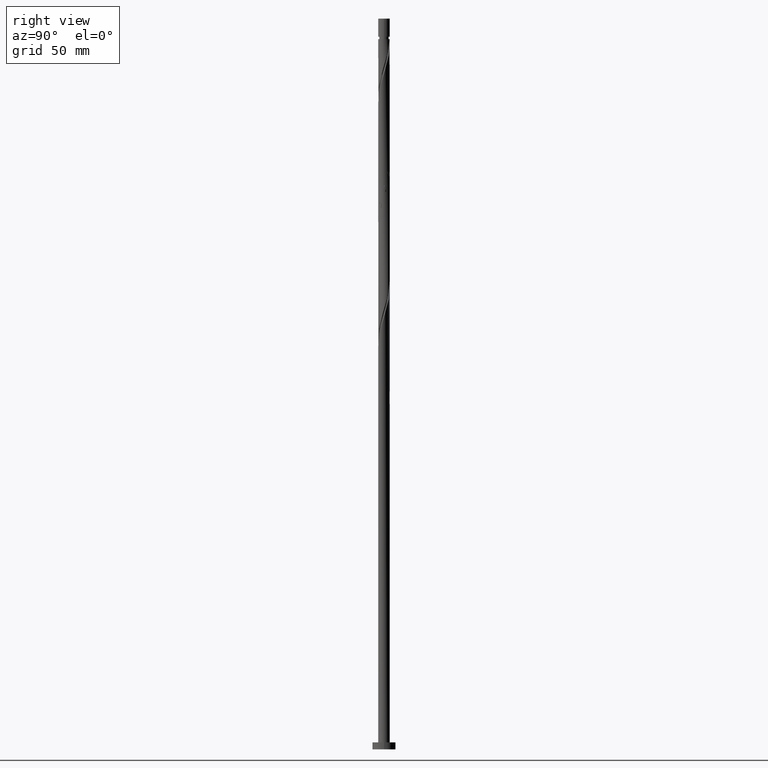
[diagram: clean part render]
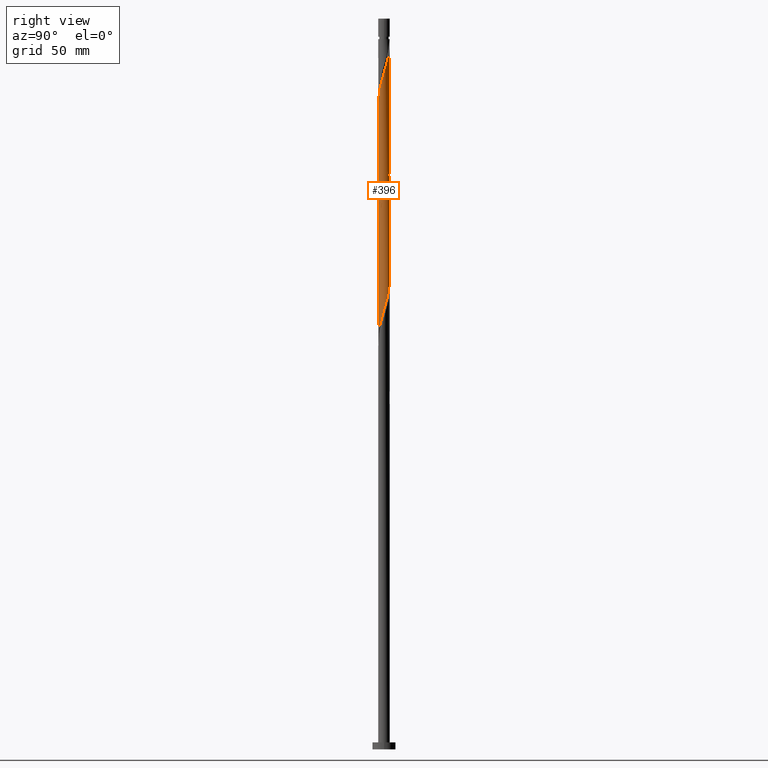
[diagram: same view with one face highlighted and labeled with its STEP entity id]
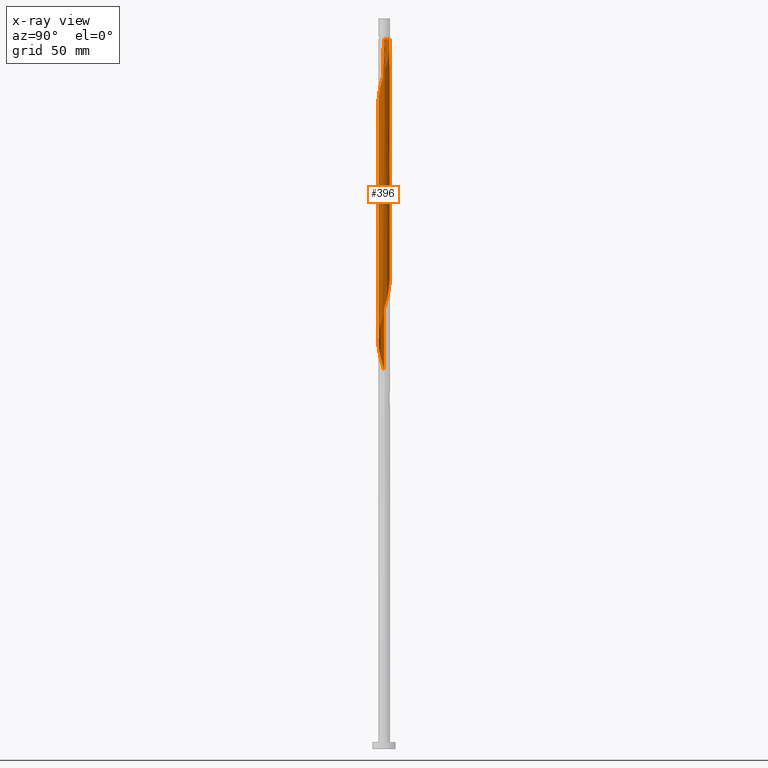
[diagram: x-ray of the same camera — body ghosted, the highlighted face saturated]
A machine part, right view. The second image highlights one B-rep face of the part: STEP entity #396.
The next image is the same camera in x-ray: the body ghosted, the highlighted face saturated — about 0% of this face is hidden behind the body in this view.
In plain terms, the highlighted cylindrical surface (bore or boss wall) has radius 2.5 mm, axis along (-0, -0, -1).
Its self-contained STEP definition (entity closure, byte-faithful):
#14 = CARTESIAN_POINT ( 'NONE',  ( -2.500000000000000000, 0.000000000000000000, 315.0000000000000000 ) ) ;
#27 = CARTESIAN_POINT ( 'NONE',  ( -2.161795315762409686, 1.286851179782861010, 211.5036807717714566 ) ) ;
#37 = CARTESIAN_POINT ( 'NONE',  ( 2.499999999999999112, -2.339614999499183426E-15, 242.2406978496775025 ) ) ;
#38 = CARTESIAN_POINT ( 'NONE',  ( 2.449999999999998401, -0.4974937185533123141, 240.5661807717713714 ) ) ;
#56 = CARTESIAN_POINT ( 'NONE',  ( -2.161795315762409686, 1.286851179782861010, 264.0036807717714282 ) ) ;
#66 = CARTESIAN_POINT ( 'NONE',  ( -0.3417565674784757701, 2.492498223619459718, 204.0036807717714566 ) ) ;
#68 = CARTESIAN_POINT ( 'NONE',  ( -1.511241513231559752, -1.991519291567516614, 171.1911807717714282 ) ) ;
#81 = FACE_OUTER_BOUND ( 'NONE', #1532, .T. ) ;
#89 = CARTESIAN_POINT ( 'NONE',  ( -2.097380685417673529, -1.389366476707181830, 168.3786807717713998 ) ) ;
#97 = CARTESIAN_POINT ( 'NONE',  ( -1.821243267372627983, -1.735631846680260049, 271.5036807717714851 ) ) ;
#98 = CARTESIAN_POINT ( 'NONE',  ( 2.097380685417673529, 1.389366476707181608, 194.6286807717714566 ) ) ;
#106 = CARTESIAN_POINT ( 'NONE',  ( -2.500000000000004441, -0.2512594538148014145, 265.9799347728289263 ) ) ;
#118 = CARTESIAN_POINT ( 'NONE',  ( 0.7735424213085847489, -2.393945920148762507, 280.8786807717714282 ) ) ;
#133 = CARTESIAN_POINT ( 'NONE',  ( 1.511241513231560862, -1.991519291567519945, 283.6911807717714851 ) ) ;
#162 = CARTESIAN_POINT ( 'NONE',  ( 2.499276151735349671, 0.06015577584021734869, 242.4411807717714282 ) ) ;
#163 = CARTESIAN_POINT ( 'NONE',  ( 2.499999999999999112, -2.339614999499183426E-15, 242.2406978496775025 ) ) ;
#166 = ORIENTED_EDGE ( 'NONE', *, *, #330, .F. ) ;
#175 = CARTESIAN_POINT ( 'NONE',  ( -1.286851179782861010, -2.161795315762409686, 224.6286807717714282 ) ) ;
#186 = DIRECTION ( 'NONE',  ( -0.000000000000000000, -0.000000000000000000, -1.000000000000000000 ) ) ;
#192 = CARTESIAN_POINT ( 'NONE',  ( 0.7735424213085846379, 2.393945920148758510, 252.7536807717713998 ) ) ;
#193 = CARTESIAN_POINT ( 'NONE',  ( -2.393945920148758510, 0.7735424213085841938, 213.3786807717714282 ) ) ;
#205 = CARTESIAN_POINT ( 'NONE',  ( -0.8878210494104737949, 2.353958098689209688, 205.8786807717713998 ) ) ;
#208 = CARTESIAN_POINT ( 'NONE',  ( 1.916506266048965568, 1.605304872039902131, 195.5661807717713714 ) ) ;
#215 = CARTESIAN_POINT ( 'NONE',  ( 2.225669392053440721, 1.138593763058826758, 193.6911807717713998 ) ) ;
#218 = CARTESIAN_POINT ( 'NONE',  ( 0.000000000000000000, 0.000000000000000000, 315.0000000000000000 ) ) ;
#226 = CARTESIAN_POINT ( 'NONE',  ( -2.423228161154335147, -0.6147888084444743662, 165.5661807717714282 ) ) ;
#236 = CARTESIAN_POINT ( 'NONE',  ( -1.991519291567519945, -1.511241513231561306, 270.5661807717713145 ) ) ;
#249 = DIRECTION ( 'NONE',  ( -1.000000000000000000, 0.000000000000000000, 0.000000000000000000 ) ) ;
#251 = CARTESIAN_POINT ( 'NONE',  ( -2.277870617955586763, -1.030196800545723379, 268.6911807717713145 ) ) ;
#252 = CARTESIAN_POINT ( 'NONE',  ( 1.605304872039906572, 1.916506266048967344, 298.6911807717714851 ) ) ;
#263 = CARTESIAN_POINT ( 'NONE',  ( 1.916506266048967344, -1.605304872039906572, 285.5661807717713714 ) ) ;
#271 = CARTESIAN_POINT ( 'NONE',  ( -1.389366476707184717, -2.097380685417676638, 273.3786807717715419 ) ) ;
#276 = CARTESIAN_POINT ( 'NONE',  ( -2.499999999999999112, 1.656760860889373586E-15, 268.4906978496774741 ) ) ;
#305 = CARTESIAN_POINT ( 'NONE',  ( -2.506054079851239624, 0.2214450157980402123, 215.2536807717714566 ) ) ;
#314 = CARTESIAN_POINT ( 'NONE',  ( 2.499999999999999112, -2.339614999499183426E-15, 242.2406978496775025 ) ) ;
#325 = CARTESIAN_POINT ( 'NONE',  ( -1.389366476707182274, 2.097380685417673529, 260.2536807717714282 ) ) ;
#326 = CARTESIAN_POINT ( 'NONE',  ( 0.8878210494104735728, -2.353958098689209688, 232.1286807717714282 ) ) ;
#330 = EDGE_CURVE ( 'NONE', #1281, #539, #861, .T. ) ;
#335 = CARTESIAN_POINT ( 'NONE',  ( 1.030196800545722713, 2.277870617955583210, 251.8161807717714282 ) ) ;
#336 = CARTESIAN_POINT ( 'NONE',  ( -2.499276151735349671, -0.06015577584021766788, 216.1911807717713998 ) ) ;
#338 = CARTESIAN_POINT ( 'NONE',  ( 2.500000000000000000, 3.061616997868383141E-16, 315.0000000000000000 ) ) ;
#340 = CARTESIAN_POINT ( 'NONE',  ( 1.389366476707181830, -2.097380685417673529, 181.5036807717714566 ) ) ;
#346 = CARTESIAN_POINT ( 'NONE',  ( 2.225669392053440721, 1.138593763058826758, 246.1911807717713714 ) ) ;
#347 = CARTESIAN_POINT ( 'NONE',  ( -1.991519291567516614, 1.511241513231559308, 210.5661807717713714 ) ) ;
#361 = CARTESIAN_POINT ( 'NONE',  ( 0.06015577584021745972, -2.499276151735349671, 176.8161807717714282 ) ) ;
#373 = CARTESIAN_POINT ( 'NONE',  ( -0.4974937185533871431, 2.450000000000752909, 306.1911807717714282 ) ) ;
#381 = CARTESIAN_POINT ( 'NONE',  ( -2.499999999999999112, 2.033636642307902766E-15, 163.4906978496774173 ) ) ;
#391 = CARTESIAN_POINT ( 'NONE',  ( 1.821243267372627983, 1.735631846680260049, 297.7536807717713714 ) ) ;
#396 = ADVANCED_FACE ( 'NONE', ( #81 ), #1469, .T. ) ;
#401 = CARTESIAN_POINT ( 'NONE',  ( 2.161795315762413239, 1.286851179782861898, 295.8786807717713714 ) ) ;
#403 = ORIENTED_EDGE ( 'NONE', *, *, #526, .F. ) ;
#411 = CARTESIAN_POINT ( 'NONE',  ( 2.423228161154338700, -0.6147888084444764756, 289.3161807717714851 ) ) ;
#420 = CARTESIAN_POINT ( 'NONE',  ( -2.161795315762413239, -1.286851179782862342, 269.6286807717713714 ) ) ;
#421 = CARTESIAN_POINT ( 'NONE',  ( 2.277870617955587207, 1.030196800545723157, 294.9411807717713714 ) ) ;
#424 = ORIENTED_EDGE ( 'NONE', *, *, #1568, .F. ) ;
#439 = CARTESIAN_POINT ( 'NONE',  ( 2.500000000000000000, 3.061616997868383141E-16, 306.1911807717714282 ) ) ;
#455 = CARTESIAN_POINT ( 'NONE',  ( 0.4974937185533126471, 2.449999999999998401, 253.6911807717713430 ) ) ;
#456 = CARTESIAN_POINT ( 'NONE',  ( 1.605304872039902131, -1.916506266048965568, 234.9411807717713430 ) ) ;
#468 = CARTESIAN_POINT ( 'NONE',  ( -1.389366476707182274, 2.097380685417673529, 207.7536807717713998 ) ) ;
#471 = EDGE_CURVE ( 'NONE', #1252, #1557, #1028, .T. ) ;
#479 = CARTESIAN_POINT ( 'NONE',  ( -2.225669392053440721, -1.138593763058827424, 219.9411807717713430 ) ) ;
#485 = CARTESIAN_POINT ( 'NONE',  ( -2.393945920148758510, 0.7735424213085841938, 265.8786807717714851 ) ) ;
#486 = CARTESIAN_POINT ( 'NONE',  ( -1.138593763058827424, 2.225669392053440721, 206.8161807717713714 ) ) ;
#496 = CARTESIAN_POINT ( 'NONE',  ( 2.500000000000000444, -0.2512594538148020251, 241.4024267707139586 ) ) ;
#504 = CARTESIAN_POINT ( 'NONE',  ( -2.500000000000000000, 0.000000000000000000, 315.0000000000000000 ) ) ;
#507 = CARTESIAN_POINT ( 'NONE',  ( -0.7735424213085843048, -2.393945920148758510, 174.0036807717713998 ) ) ;
#516 = CARTESIAN_POINT ( 'NONE',  ( 2.393945920148758510, -0.7735424213085844158, 187.1286807717714282 ) ) ;
#526 = EDGE_CURVE ( 'NONE', #1106, #1557, #1236, .T. ) ;
#533 = DIRECTION ( 'NONE',  ( -0.000000000000000000, -0.000000000000000000, -1.000000000000000000 ) ) ;
#539 = VERTEX_POINT ( 'NONE', #601 ) ;
#545 = CARTESIAN_POINT ( 'NONE',  ( 1.735631846680260049, -1.821243267372627983, 284.6286807717715988 ) ) ;
#553 = CARTESIAN_POINT ( 'NONE',  ( -2.500000000000004441, -1.037341259746041989E-15, 265.1416636938653824 ) ) ;
#554 = CARTESIAN_POINT ( 'NONE',  ( 1.138593763058830532, 2.225669392053443829, 300.5661807717714282 ) ) ;
#561 = CARTESIAN_POINT ( 'NONE',  ( 2.450000000000002842, 0.4974937185533119255, 293.0661807717714851 ) ) ;
#589 = CARTESIAN_POINT ( 'NONE',  ( 2.499999999999999112, 0.03008224291597728917, 242.3410605379026208 ) ) ;
#601 = CARTESIAN_POINT ( 'NONE',  ( -0.4974937185533871431, 2.450000000000752909, 306.1911807717714282 ) ) ;
#602 = CARTESIAN_POINT ( 'NONE',  ( 1.821243267372624208, -1.735631846680257384, 235.8786807717713714 ) ) ;
#613 = CARTESIAN_POINT ( 'NONE',  ( -1.030196800545722269, -2.277870617955584098, 225.5661807717713714 ) ) ;
#625 = CARTESIAN_POINT ( 'NONE',  ( 1.389366476707181830, -2.097380685417673529, 234.0036807717714566 ) ) ;
#629 = CARTESIAN_POINT ( 'NONE',  ( -2.225669392053440721, -1.138593763058827424, 167.4411807717713998 ) ) ;
#634 = CARTESIAN_POINT ( 'NONE',  ( -2.499999999999999112, 1.656760860889373586E-15, 268.4906978496774741 ) ) ;
#635 = CARTESIAN_POINT ( 'NONE',  ( 0.2214450157980401013, 2.506054079851239624, 202.1286807717714282 ) ) ;
#637 = CARTESIAN_POINT ( 'NONE',  ( 2.423228161154335591, 0.6147888084444741441, 191.8161807717713714 ) ) ;
#645 = CARTESIAN_POINT ( 'NONE',  ( 2.499276151735349671, 0.06015577584021734869, 189.9411807717714282 ) ) ;
#647 = DIRECTION ( 'NONE',  ( -0.000000000000000000, -0.000000000000000000, -1.000000000000000000 ) ) ;
#654 = CARTESIAN_POINT ( 'NONE',  ( 1.991519291567516614, -1.511241513231559752, 184.3161807717713714 ) ) ;
#669 = CARTESIAN_POINT ( 'NONE',  ( 2.492498223619464159, -0.3417565674784771579, 290.2536807717714851 ) ) ;
#704 = AXIS2_PLACEMENT_3D ( 'NONE', #785, #533, #249 ) ;
#722 = CARTESIAN_POINT ( 'NONE',  ( -0.8878210494104737949, 2.353958098689209688, 258.3786807717713714 ) ) ;
#723 = CARTESIAN_POINT ( 'NONE',  ( -2.423228161154335147, -0.6147888084444743662, 218.0661807717713714 ) ) ;
#734 = CARTESIAN_POINT ( 'NONE',  ( -2.449999999999998401, 0.4974937185533121475, 266.8161807717713145 ) ) ;
#735 = CARTESIAN_POINT ( 'NONE',  ( -2.353958098689209688, -0.8878210494104735728, 219.0036807717714282 ) ) ;
#755 = CARTESIAN_POINT ( 'NONE',  ( -1.821243267372624430, 1.735631846680257384, 262.1286807717713714 ) ) ;
#756 = CARTESIAN_POINT ( 'NONE',  ( -2.277870617955584098, 1.030196800545722269, 212.4411807717713998 ) ) ;
#759 = VECTOR ( 'NONE', #186, 1000.000000000000000 ) ;
#770 = CARTESIAN_POINT ( 'NONE',  ( 1.605304872039902131, -1.916506266048965568, 182.4411807717713998 ) ) ;
#785 = CARTESIAN_POINT ( 'NONE',  ( 0.000000000000000000, 0.000000000000000000, 306.1911807717714282 ) ) ;
#820 = CARTESIAN_POINT ( 'NONE',  ( -0.8878210494104759043, -2.353958098689213685, 275.2536807717714851 ) ) ;
#840 = EDGE_CURVE ( 'NONE', #1777, #539, #1308, .T. ) ;
#844 = CARTESIAN_POINT ( 'NONE',  ( -2.499999999999974243, 0.000000000000000000, 306.1911807717714282 ) ) ;
#859 = CARTESIAN_POINT ( 'NONE',  ( -1.605304872039902353, 1.916506266048965346, 261.1911807717713714 ) ) ;
#860 = CARTESIAN_POINT ( 'NONE',  ( 0.7735424213085846379, 2.393945920148758510, 200.2536807717714282 ) ) ;
#861 =( BOUNDED_CURVE ( )  B_SPLINE_CURVE ( 2, ( #553, #106, #1096, #1661, #251, #420, #236, #97, #1357, #271, #1367, #820, #1786, #1384, #1210, #1516, #1766, #118, #1497, #1507, #133, #545, #263, #1662, #1239, #1645, #411, #669, #1248, #1217, #561, #1795, #421, #401, #947, #391, #252, #1376, #554, #1097, #1802, #1058, #1049, #1618, #373 ),
 .UNSPECIFIED., .F., .F. ) 
 B_SPLINE_CURVE_WITH_KNOTS ( ( 3, 2, 2, 2, 2, 2, 2, 2, 2, 2, 2, 2, 2, 2, 2, 2, 2, 2, 2, 2, 2, 2, 3 ),
 ( 0.5545303401299219725, 0.5625000000000000000, 0.5714285714285713969, 0.5803571428571427937, 0.5892857142857141906, 0.5982142857142855874, 0.6071428571428570953, 0.6160714285714284921, 0.6249999999999998890, 0.6339285714285712858, 0.6428571428571426827, 0.6517857142857141906, 0.6607142857142854764, 0.6696428571428569843, 0.6785714285714283811, 0.6874999999999997780, 0.6964285714285711748, 0.7053571428571425717, 0.7142857142857139685, 0.7232142857142853654, 0.7321428571428568732, 0.7410714285714282701, 0.7499999999999996669 ),
 .UNSPECIFIED. ) 
 CURVE ( )  GEOMETRIC_REPRESENTATION_ITEM ( )  RATIONAL_B_SPLINE_CURVE ( ( 0.9079949616362266163, 0.9039886423360893319, 0.9090909090909563561, 0.9033747362666310066, 0.9090909090909563561, 0.9033747362666310066, 0.9090909090909563561, 0.9033747362666310066, 0.9090909090909563561, 0.9033747362666310066, 0.9090909090909563561, 0.9033747362666310066, 0.9090909090909563561, 0.9033747362666310066, 0.9090909090909563561, 0.9033747362666310066, 0.9090909090909563561, 0.9033747362666310066, 0.9090909090909563561, 0.9033747362666310066, 0.9090909090909563561, 0.9033747362666310066, 0.9090909090909563561, 0.9033747362666310066, 0.9090909090909563561, 0.9033747362666310066, 0.9090909090909563561, 0.9033747362666310066, 0.9090909090909563561, 0.9033747362666310066, 0.9090909090909563561, 0.9033747362666310066, 0.9090909090909563561, 0.9033747362666310066, 0.9090909090909563561, 0.9033747362666310066, 0.9090909090909563561, 0.9033747362666310066, 0.9090909090909563561, 0.9033747362666310066, 0.9090909090909563561, 0.9033747362666310066, 0.9090909090909563561, 0.9033747362666311176, 0.9090909090909562451 ) ) 
 REPRESENTATION_ITEM ( '' )  );
#862 = EDGE_CURVE ( 'NONE', #1281, #1410, #1228, .T. ) ;
#884 = CARTESIAN_POINT ( 'NONE',  ( -1.991519291567516614, 1.511241513231559308, 263.0661807717714282 ) ) ;
#885 = CARTESIAN_POINT ( 'NONE',  ( 1.138593763058826758, -2.225669392053440721, 233.0661807717713998 ) ) ;
#892 = CARTESIAN_POINT ( 'NONE',  ( 1.511241513231559752, 1.991519291567516614, 249.9411807717713998 ) ) ;
#895 = CARTESIAN_POINT ( 'NONE',  ( -1.286851179782861010, -2.161795315762409686, 172.1286807717714282 ) ) ;
#900 = CARTESIAN_POINT ( 'NONE',  ( 2.353958098689209688, 0.8878210494104733508, 245.2536807717713998 ) ) ;
#901 = CARTESIAN_POINT ( 'NONE',  ( -0.6147888084444745882, 2.423228161154335147, 204.9411807717713714 ) ) ;
#904 = CARTESIAN_POINT ( 'NONE',  ( 1.138593763058826758, -2.225669392053440721, 180.5661807717714282 ) ) ;
#947 = CARTESIAN_POINT ( 'NONE',  ( 1.991519291567520389, 1.511241513231561084, 296.8161807717713714 ) ) ;
#970 = ORIENTED_EDGE ( 'NONE', *, *, #862, .T. ) ;
#976 = DIRECTION ( 'NONE',  ( -0.000000000000000000, -0.000000000000000000, -1.000000000000000000 ) ) ;
#980 = ORIENTED_EDGE ( 'NONE', *, *, #471, .T. ) ;
#996 = ORIENTED_EDGE ( 'NONE', *, *, #1054, .F. ) ;
#1004 = CARTESIAN_POINT ( 'NONE',  ( -1.605304872039902353, 1.916506266048965346, 208.6911807717713714 ) ) ;
#1025 = CARTESIAN_POINT ( 'NONE',  ( 0.2214450157980401013, 2.506054079851239624, 254.6286807717714282 ) ) ;
#1026 = CARTESIAN_POINT ( 'NONE',  ( -2.492498223619459718, -0.3417565674784753815, 217.1286807717714566 ) ) ;
#1028 = LINE ( 'NONE', #338, #759 ) ;
#1029 = CARTESIAN_POINT ( 'NONE',  ( -0.4974937185533122586, -2.449999999999998401, 174.9411807717713714 ) ) ;
#1035 = CARTESIAN_POINT ( 'NONE',  ( -2.277870617955584098, 1.030196800545722269, 264.9411807717713714 ) ) ;
#1039 = CARTESIAN_POINT ( 'NONE',  ( 2.506054079851239624, -0.2214450157980405176, 189.0036807717713714 ) ) ;
#1045 = CARTESIAN_POINT ( 'NONE',  ( -0.4974937185533122586, -2.449999999999998401, 227.4411807717713714 ) ) ;
#1046 = CARTESIAN_POINT ( 'NONE',  ( 0.3417565674784753260, -2.492498223619459718, 177.7536807717714282 ) ) ;
#1049 = CARTESIAN_POINT ( 'NONE',  ( 0.06015577584021897933, 2.499276151735353668, 304.3161807717713714 ) ) ;
#1054 = EDGE_CURVE ( 'NONE', #1777, #1106, #1235, .T. ) ;
#1056 = CARTESIAN_POINT ( 'NONE',  ( -1.030196800545722269, -2.277870617955584098, 173.0661807717714566 ) ) ;
#1058 = CARTESIAN_POINT ( 'NONE',  ( 0.3417565674784771579, 2.492498223619464159, 303.3786807717714851 ) ) ;
#1096 = CARTESIAN_POINT ( 'NONE',  ( -2.450000000000002842, -0.4974937185533122586, 266.8161807717714282 ) ) ;
#1097 = CARTESIAN_POINT ( 'NONE',  ( 0.8878210494104763484, 2.353958098689213685, 301.5036807717715419 ) ) ;
#1106 = VERTEX_POINT ( 'NONE', #276 ) ;
#1124 = VECTOR ( 'NONE', #1631, 1000.000000000000000 ) ;
#1135 = CARTESIAN_POINT ( 'NONE',  ( -1.138593763058827424, 2.225669392053440721, 259.3161807717713714 ) ) ;
#1136 = CARTESIAN_POINT ( 'NONE',  ( 1.030196800545722713, 2.277870617955583210, 199.3161807717713998 ) ) ;
#1156 = CARTESIAN_POINT ( 'NONE',  ( -2.097380685417673529, -1.389366476707181830, 220.8786807717714566 ) ) ;
#1168 = CARTESIAN_POINT ( 'NONE',  ( -2.499999999999999556, 0.2512594538148067436, 267.6524267707138165 ) ) ;
#1169 = CARTESIAN_POINT ( 'NONE',  ( -0.2214450157980403788, -2.506054079851239624, 228.3786807717714282 ) ) ;
#1179 = CARTESIAN_POINT ( 'NONE',  ( 0.6147888084444741441, -2.423228161154335147, 231.1911807717713998 ) ) ;
#1181 = CARTESIAN_POINT ( 'NONE',  ( 2.277870617955584098, -1.030196800545722491, 186.1911807717713998 ) ) ;
#1202 = CARTESIAN_POINT ( 'NONE',  ( 2.449999999999998401, -0.4974937185533123141, 188.0661807717714282 ) ) ;
#1210 = CARTESIAN_POINT ( 'NONE',  ( -0.06015577584021847279, -2.499276151735354112, 278.0661807717713714 ) ) ;
#1217 = CARTESIAN_POINT ( 'NONE',  ( 2.506054079851243621, 0.2214450157980396017, 292.1286807717714851 ) ) ;
#1228 = LINE ( 'NONE', #504, #1124 ) ;
#1235 = LINE ( 'NONE', #14, #1778 ) ;
#1236 =( BOUNDED_CURVE ( )  B_SPLINE_CURVE ( 2, ( #634, #1168, #734, #485, #1035, #56, #884, #755, #859, #325, #1135, #722, #1287, #1700, #1583, #1025, #455, #192, #335, #1309, #892, #1591, #1564, #1275, #346, #900, #1738, #1415, #162, #589, #37 ),
 .UNSPECIFIED., .F., .F. ) 
 B_SPLINE_CURVE_WITH_KNOTS ( ( 3, 2, 2, 2, 2, 2, 2, 2, 2, 2, 2, 2, 2, 2, 2, 3 ),
 ( 0.4295303401299220836, 0.4375000000000000000, 0.4464285714285714524, 0.4553571428571428492, 0.4642857142857143016, 0.4732142857142856984, 0.4821428571428571508, 0.4910714285714285476, 0.5000000000000000000, 0.5089285714285713969, 0.5178571428571429047, 0.5267857142857143016, 0.5357142857142856984, 0.5446428571428570953, 0.5535714285714286031, 0.5545303401299219725 ),
 .UNSPECIFIED. ) 
 CURVE ( )  GEOMETRIC_REPRESENTATION_ITEM ( )  RATIONAL_B_SPLINE_CURVE ( ( 0.9079949616362198439, 0.9039886423360827816, 0.9090909090909496948, 0.9033747362666244562, 0.9090909090909496948, 0.9033747362666244562, 0.9090909090909496948, 0.9033747362666244562, 0.9090909090909496948, 0.9033747362666244562, 0.9090909090909496948, 0.9033747362666244562, 0.9090909090909496948, 0.9033747362666244562, 0.9090909090909496948, 0.9033747362666244562, 0.9090909090909496948, 0.9033747362666244562, 0.9090909090909496948, 0.9033747362666244562, 0.9090909090909496948, 0.9033747362666244562, 0.9090909090909496948, 0.9033747362666244562, 0.9090909090909496948, 0.9033747362666244562, 0.9090909090909496948, 0.9033747362666244562, 0.9090909090909496948, 0.9084770030214914804, 0.9079949616362198439 ) ) 
 REPRESENTATION_ITEM ( '' )  );
#1239 = CARTESIAN_POINT ( 'NONE',  ( 2.225669392053443829, -1.138593763058830532, 287.4411807717713145 ) ) ;
#1248 = CARTESIAN_POINT ( 'NONE',  ( 2.499276151735354112, -0.06015577584021870178, 291.1911807717714282 ) ) ;
#1252 = VERTEX_POINT ( 'NONE', #439 ) ;
#1269 = ORIENTED_EDGE ( 'NONE', *, *, #471, .F. ) ;
#1275 = CARTESIAN_POINT ( 'NONE',  ( 2.097380685417673529, 1.389366476707181608, 247.1286807717714566 ) ) ;
#1276 = CARTESIAN_POINT ( 'NONE',  ( -0.7735424213085843048, -2.393945920148758510, 226.5036807717714851 ) ) ;
#1281 = VERTEX_POINT ( 'NONE', #1523 ) ;
#1287 = CARTESIAN_POINT ( 'NONE',  ( -0.6147888084444745882, 2.423228161154335147, 257.4411807717713714 ) ) ;
#1288 = CARTESIAN_POINT ( 'NONE',  ( 2.393945920148758510, -0.7735424213085844158, 239.6286807717714282 ) ) ;
#1299 = CARTESIAN_POINT ( 'NONE',  ( 1.991519291567516614, -1.511241513231559752, 236.8161807717713714 ) ) ;
#1308 = CIRCLE ( 'NONE', #704, 2.499999999999974243 ) ;
#1309 = CARTESIAN_POINT ( 'NONE',  ( 1.286851179782861232, 2.161795315762409242, 250.8786807717714566 ) ) ;
#1310 = CARTESIAN_POINT ( 'NONE',  ( -2.449999999999998401, 0.4974937185533121475, 214.3161807717713998 ) ) ;
#1322 = CARTESIAN_POINT ( 'NONE',  ( -0.06015577584021779278, 2.499276151735349671, 203.0661807717713998 ) ) ;
#1323 = CARTESIAN_POINT ( 'NONE',  ( -2.499999999999999112, -0.03008224291597063824, 163.5910605379025640 ) ) ;
#1332 = CARTESIAN_POINT ( 'NONE',  ( -2.353958098689209688, -0.8878210494104735728, 166.5036807717713998 ) ) ;
#1349 = CARTESIAN_POINT ( 'NONE',  ( 2.161795315762409242, -1.286851179782861232, 185.2536807717713998 ) ) ;
#1352 =( BOUNDED_CURVE ( )  B_SPLINE_CURVE ( 2, ( #163, #496, #38, #1288, #1416, #1427, #1299, #602, #456, #625, #885, #326, #1179, #1712, #1720, #1169, #1045, #1276, #613, #175, #1447, #1592, #1455, #1156, #479, #735, #723, #1026, #336, #305, #1310, #193, #756, #27, #347, #1728, #1004, #468, #486, #205, #901, #66, #1322, #635, #1739, #860, #1136, #1565, #1487, #1606, #208, #98, #215, #1767, #637, #1467, #645, #1039, #1202, #516, #1181, #1349, #654, #1586, #770, #340, #904, #1732, #1625, #1046, #361, #1749, #1029, #507, #1056, #895, #68, #1449, #1459, #89, #629, #1332, #226, #1616, #1597, #1323, #381 ),
 .UNSPECIFIED., .F., .T. ) 
 B_SPLINE_CURVE_WITH_KNOTS ( ( 3, 2, 2, 2, 2, 2, 2, 2, 2, 2, 2, 2, 2, 2, 2, 2, 2, 2, 2, 2, 2, 2, 2, 2, 2, 2, 2, 2, 2, 2, 2, 2, 2, 2, 2, 2, 2, 2, 2, 2, 2, 2, 2, 3 ),
 ( 0.5545303401299219725, 0.5625000000000000000, 0.5714285714285713969, 0.5803571428571429047, 0.5892857142857143016, 0.5982142857142856984, 0.6071428571428570953, 0.6160714285714286031, 0.6250000000000000000, 0.6339285714285713969, 0.6428571428571429047, 0.6517857142857143016, 0.6607142857142856984, 0.6696428571428570953, 0.6785714285714286031, 0.6875000000000000000, 0.6964285714285713969, 0.7053571428571429047, 0.7142857142857143016, 0.7232142857142856984, 0.7321428571428570953, 0.7410714285714286031, 0.7500000000000000000, 0.7589285714285713969, 0.7678571428571429047, 0.7767857142857143016, 0.7857142857142856984, 0.7946428571428570953, 0.8035714285714286031, 0.8125000000000000000, 0.8214285714285713969, 0.8303571428571429047, 0.8392857142857143016, 0.8482142857142856984, 0.8571428571428570953, 0.8660714285714286031, 0.8750000000000000000, 0.8839285714285713969, 0.8928571428571429047, 0.9017857142857143016, 0.9107142857142856984, 0.9196428571428569843, 0.9285714285714286031, 0.9295303401299221946 ),
 .UNSPECIFIED. ) 
 CURVE ( )  GEOMETRIC_REPRESENTATION_ITEM ( )  RATIONAL_B_SPLINE_CURVE ( ( 0.9079949616362198439, 0.9039886423360826706, 0.9090909090909496948, 0.9033747362666244562, 0.9090909090909496948, 0.9033747362666244562, 0.9090909090909496948, 0.9033747362666244562, 0.9090909090909496948, 0.9033747362666244562, 0.9090909090909496948, 0.9033747362666244562, 0.9090909090909496948, 0.9033747362666244562, 0.9090909090909496948, 0.9033747362666244562, 0.9090909090909496948, 0.9033747362666244562, 0.9090909090909496948, 0.9033747362666244562, 0.9090909090909496948, 0.9033747362666244562, 0.9090909090909496948, 0.9033747362666244562, 0.9090909090909496948, 0.9033747362666244562, 0.9090909090909496948, 0.9033747362666244562, 0.9090909090909496948, 0.9033747362666244562, 0.9090909090909496948, 0.9033747362666244562, 0.9090909090909496948, 0.9033747362666244562, 0.9090909090909496948, 0.9033747362666244562, 0.9090909090909496948, 0.9033747362666244562, 0.9090909090909496948, 0.9033747362666244562, 0.9090909090909496948, 0.9033747362666244562, 0.9090909090909496948, 0.9033747362666244562, 0.9090909090909496948, 0.9033747362666244562, 0.9090909090909496948, 0.9033747362666244562, 0.9090909090909496948, 0.9033747362666244562, 0.9090909090909496948, 0.9033747362666244562, 0.9090909090909496948, 0.9033747362666244562, 0.9090909090909496948, 0.9033747362666244562, 0.9090909090909496948, 0.9033747362666244562, 0.9090909090909496948, 0.9033747362666244562, 0.9090909090909496948, 0.9033747362666244562, 0.9090909090909496948, 0.9033747362666244562, 0.9090909090909496948, 0.9033747362666244562, 0.9090909090909496948, 0.9033747362666244562, 0.9090909090909496948, 0.9033747362666244562, 0.9090909090909496948, 0.9033747362666244562, 0.9090909090909496948, 0.9033747362666244562, 0.9090909090909496948, 0.9033747362666244562, 0.9090909090909496948, 0.9033747362666244562, 0.9090909090909496948, 0.9033747362666244562, 0.9090909090909496948, 0.9033747362666244562, 0.9090909090909496948, 0.9033747362666244562, 0.9090909090909496948, 0.9084770030214913694, 0.9079949616362196219 ) ) 
 REPRESENTATION_ITEM ( '' )  );
#1357 = CARTESIAN_POINT ( 'NONE',  ( -1.605304872039906572, -1.916506266048967788, 272.4411807717714282 ) ) ;
#1367 = CARTESIAN_POINT ( 'NONE',  ( -1.138593763058830532, -2.225669392053443385, 274.3161807717713145 ) ) ;
#1376 = CARTESIAN_POINT ( 'NONE',  ( 1.389366476707185161, 2.097380685417676638, 299.6286807717714851 ) ) ;
#1384 = CARTESIAN_POINT ( 'NONE',  ( -0.3417565674784769914, -2.492498223619465048, 277.1286807717714282 ) ) ;
#1410 = VERTEX_POINT ( 'NONE', #1584 ) ;
#1415 = CARTESIAN_POINT ( 'NONE',  ( 2.492498223619459718, 0.3417565674784752150, 243.3786807717713998 ) ) ;
#1416 = CARTESIAN_POINT ( 'NONE',  ( 2.277870617955584098, -1.030196800545722491, 238.6911807717713714 ) ) ;
#1427 = CARTESIAN_POINT ( 'NONE',  ( 2.161795315762409242, -1.286851179782861232, 237.7536807717714851 ) ) ;
#1447 = CARTESIAN_POINT ( 'NONE',  ( -1.511241513231559752, -1.991519291567516614, 223.6911807717714282 ) ) ;
#1449 = CARTESIAN_POINT ( 'NONE',  ( -1.735631846680257384, -1.821243267372624208, 170.2536807717714566 ) ) ;
#1455 = CARTESIAN_POINT ( 'NONE',  ( -1.916506266048965124, -1.605304872039902131, 221.8161807717714282 ) ) ;
#1459 = CARTESIAN_POINT ( 'NONE',  ( -1.916506266048965124, -1.605304872039902131, 169.3161807717713714 ) ) ;
#1467 = CARTESIAN_POINT ( 'NONE',  ( 2.492498223619459718, 0.3417565674784752150, 190.8786807717714566 ) ) ;
#1469 = CYLINDRICAL_SURFACE ( 'NONE', #1602, 2.500000000000000000 ) ;
#1479 = DIRECTION ( 'NONE',  ( -1.000000000000000000, 0.000000000000000000, 0.000000000000000000 ) ) ;
#1487 = CARTESIAN_POINT ( 'NONE',  ( 1.511241513231559752, 1.991519291567516614, 197.4411807717714282 ) ) ;
#1497 = CARTESIAN_POINT ( 'NONE',  ( 1.030196800545723379, -2.277870617955587207, 281.8161807717713714 ) ) ;
#1507 = CARTESIAN_POINT ( 'NONE',  ( 1.286851179782862342, -2.161795315762413239, 282.7536807717714282 ) ) ;
#1516 = CARTESIAN_POINT ( 'NONE',  ( 0.2214450157980397960, -2.506054079851243621, 279.0036807717715419 ) ) ;
#1523 = CARTESIAN_POINT ( 'NONE',  ( -2.500000000000004441, -1.037341259746041989E-15, 265.1416636938653824 ) ) ;
#1532 = EDGE_LOOP ( 'NONE', ( #996, #1533, #166, #970, #424, #1269, #980, #403 ) ) ;
#1533 = ORIENTED_EDGE ( 'NONE', *, *, #840, .T. ) ;
#1557 = VERTEX_POINT ( 'NONE', #314 ) ;
#1564 = CARTESIAN_POINT ( 'NONE',  ( 1.916506266048965568, 1.605304872039902131, 248.0661807717713430 ) ) ;
#1565 = CARTESIAN_POINT ( 'NONE',  ( 1.286851179782861232, 2.161795315762409242, 198.3786807717714566 ) ) ;
#1568 = EDGE_CURVE ( 'NONE', #1557, #1410, #1352, .T. ) ;
#1583 = CARTESIAN_POINT ( 'NONE',  ( -0.06015577584021779278, 2.499276151735349671, 255.5661807717713998 ) ) ;
#1584 = CARTESIAN_POINT ( 'NONE',  ( -2.499999999999999112, 2.033636642307902766E-15, 163.4906978496774457 ) ) ;
#1586 = CARTESIAN_POINT ( 'NONE',  ( 1.821243267372624208, -1.735631846680257384, 183.3786807717713714 ) ) ;
#1591 = CARTESIAN_POINT ( 'NONE',  ( 1.735631846680258050, 1.821243267372623764, 249.0036807717713714 ) ) ;
#1592 = CARTESIAN_POINT ( 'NONE',  ( -1.735631846680257384, -1.821243267372624208, 222.7536807717713714 ) ) ;
#1597 = CARTESIAN_POINT ( 'NONE',  ( -2.499276151735349671, -0.06015577584021766788, 163.6911807717714566 ) ) ;
#1602 = AXIS2_PLACEMENT_3D ( 'NONE', #218, #647, #1479 ) ;
#1606 = CARTESIAN_POINT ( 'NONE',  ( 1.735631846680258050, 1.821243267372623764, 196.5036807717713714 ) ) ;
#1616 = CARTESIAN_POINT ( 'NONE',  ( -2.492498223619459718, -0.3417565674784753815, 164.6286807717714282 ) ) ;
#1618 = CARTESIAN_POINT ( 'NONE',  ( -0.2214450157980289435, 2.506054079851243177, 305.2536807717714851 ) ) ;
#1625 = CARTESIAN_POINT ( 'NONE',  ( 0.6147888084444741441, -2.423228161154335147, 178.6911807717714282 ) ) ;
#1631 = DIRECTION ( 'NONE',  ( -0.000000000000000000, -0.000000000000000000, -1.000000000000000000 ) ) ;
#1645 = CARTESIAN_POINT ( 'NONE',  ( 2.353958098689213685, -0.8878210494104759043, 288.3786807717714851 ) ) ;
#1661 = CARTESIAN_POINT ( 'NONE',  ( -2.393945920148762507, -0.7735424213085849710, 267.7536807717713714 ) ) ;
#1662 = CARTESIAN_POINT ( 'NONE',  ( 2.097380685417676638, -1.389366476707184939, 286.5036807717714851 ) ) ;
#1700 = CARTESIAN_POINT ( 'NONE',  ( -0.3417565674784757701, 2.492498223619459718, 256.5036807717713714 ) ) ;
#1712 = CARTESIAN_POINT ( 'NONE',  ( 0.3417565674784753260, -2.492498223619459718, 230.2536807717714282 ) ) ;
#1720 = CARTESIAN_POINT ( 'NONE',  ( 0.06015577584021745972, -2.499276151735349671, 229.3161807717713998 ) ) ;
#1728 = CARTESIAN_POINT ( 'NONE',  ( -1.821243267372624430, 1.735631846680257384, 209.6286807717714566 ) ) ;
#1732 = CARTESIAN_POINT ( 'NONE',  ( 0.8878210494104735728, -2.353958098689209688, 179.6286807717713998 ) ) ;
#1738 = CARTESIAN_POINT ( 'NONE',  ( 2.423228161154335591, 0.6147888084444741441, 244.3161807717713714 ) ) ;
#1739 = CARTESIAN_POINT ( 'NONE',  ( 0.4974937185533126471, 2.449999999999998401, 201.1911807717713714 ) ) ;
#1749 = CARTESIAN_POINT ( 'NONE',  ( -0.2214450157980403788, -2.506054079851239624, 175.8786807717714566 ) ) ;
#1766 = CARTESIAN_POINT ( 'NONE',  ( 0.4974937185533120365, -2.450000000000002842, 279.9411807717714282 ) ) ;
#1767 = CARTESIAN_POINT ( 'NONE',  ( 2.353958098689209688, 0.8878210494104733508, 192.7536807717714566 ) ) ;
#1777 = VERTEX_POINT ( 'NONE', #844 ) ;
#1778 = VECTOR ( 'NONE', #976, 1000.000000000000000 ) ;
#1786 = CARTESIAN_POINT ( 'NONE',  ( -0.6147888084444762535, -2.423228161154338700, 276.1911807717713714 ) ) ;
#1795 = CARTESIAN_POINT ( 'NONE',  ( 2.393945920148762507, 0.7735424213085845269, 294.0036807717714851 ) ) ;
#1802 = CARTESIAN_POINT ( 'NONE',  ( 0.6147888084444764756, 2.423228161154338700, 302.4411807717714282 ) ) ;